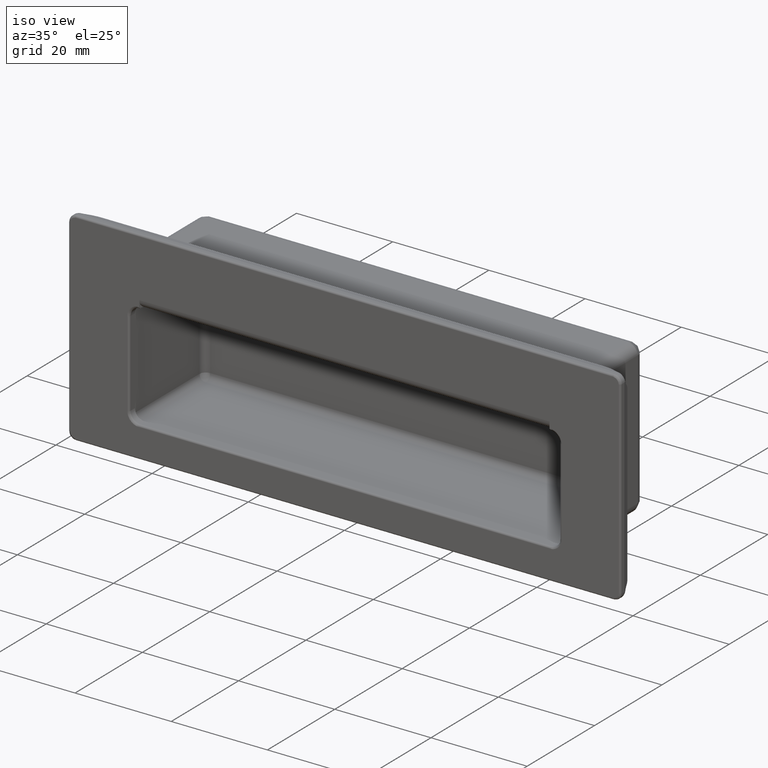
[diagram: clean part render]
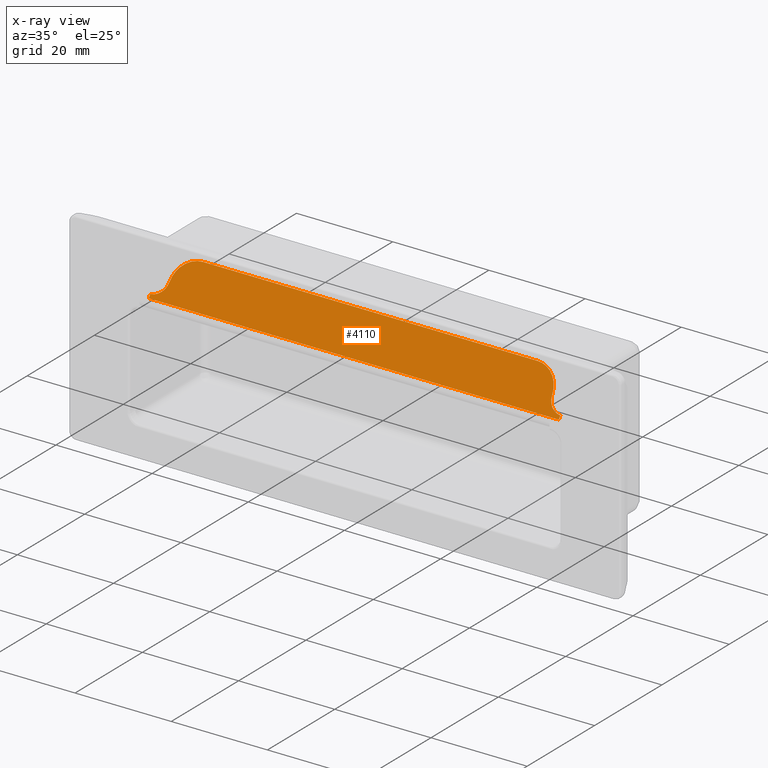
[diagram: x-ray — body ghosted, one internal face saturated and labeled with its STEP entity id]
A machine part, iso view, then the same camera in x-ray: the body is ghosted and one INTERNAL B-rep face — a face not visible from any outside direction — is saturated and labeled: STEP entity #4110.
In plain terms, the highlighted face is a freeform B-spline surface patch.
Its self-contained STEP definition (entity closure, byte-faithful):
#3697=CARTESIAN_POINT('',(39.775182410482898,4.889033783655350,11.181112582391959));
#3698=VERTEX_POINT('',#3697);
#3721=CARTESIAN_POINT('',(34.776537860952303,7.663549479815401,15.199999999978800));
#3722=VERTEX_POINT('',#3721);
#3728=CARTESIAN_POINT('',(39.775182410482898,4.889033783655350,11.181112582391959));
#3729=CARTESIAN_POINT('',(39.768630832592187,5.049259163799806,11.413199128214000));
#3730=CARTESIAN_POINT('',(39.701109429291812,5.403341219309533,11.926087168339871));
#3731=CARTESIAN_POINT('',(39.424063317272569,5.920828853939117,12.675668274142120));
#3732=CARTESIAN_POINT('',(38.991421387648010,6.376299601946769,13.335417887667189));
#3733=CARTESIAN_POINT('',(38.356493124393452,6.837343688033839,14.003240484273739));
#3734=CARTESIAN_POINT('',(37.575330037163809,7.207505413870593,14.539419935156801));
#3735=CARTESIAN_POINT('',(36.580809987253900,7.491223957061687,14.950386391366520));
#3736=CARTESIAN_POINT('',(35.683275754093373,7.633450614080821,15.156401777441779));
#3737=CARTESIAN_POINT('',(35.058629865239347,7.663559524581466,15.200014549831391));
#3738=CARTESIAN_POINT('',(34.776537860952303,7.663549479815401,15.199999999978800));
#3739=B_SPLINE_CURVE_WITH_KNOTS('',3,(#3728,#3729,#3730,#3731,#3732,#3733,#3734,#3735,#3736,#3737,#3738),.UNSPECIFIED.,.F.,.U.,(4,1,1,1,1,1,1,1,4),(0.000000153178559,0.846297590618310,1.873949709255350,2.841154782092601,3.566557639520147,4.956877820079900,5.863652485125332,6.891319940605430,7.737602309952502),.UNSPECIFIED.);
#3740=EDGE_CURVE('',#3698,#3722,#3739,.T.);
#3759=CARTESIAN_POINT('',(42.636537860952302,3.226124157492905,8.772387130761670));
#3760=VERTEX_POINT('',#3759);
#3761=CARTESIAN_POINT('',(39.775182410482898,4.889033783655350,11.181112582391959));
#3762=CARTESIAN_POINT('',(39.780597841686003,4.755775871288670,10.988088427551080));
#3763=CARTESIAN_POINT('',(39.843577245524827,4.503299819681272,10.622376736491130));
#3764=CARTESIAN_POINT('',(40.103525447783497,4.114892918557872,10.059769139759201));
#3765=CARTESIAN_POINT('',(40.497074648751820,3.794883165140539,9.596234846787580));
#3766=CARTESIAN_POINT('',(40.990441310421858,3.545958028758148,9.235666658284591));
#3767=CARTESIAN_POINT('',(41.657920868430622,3.319228911692161,8.907249415225815));
#3768=CARTESIAN_POINT('',(42.238002940286627,3.236280611648847,8.787098759829281));
#3769=CARTESIAN_POINT('',(42.636537860952302,3.226124157492905,8.772387130761670));
#3770=B_SPLINE_CURVE_WITH_KNOTS('',3,(#3761,#3762,#3763,#3764,#3765,#3766,#3767,#3768,#3769),.UNSPECIFIED.,.F.,.U.,(4,1,1,1,1,1,4),(0.000000132698048,0.703852578003654,1.337359520669883,2.182008736138705,2.745068744012519,3.308179520914462,4.504756593339455),.UNSPECIFIED.);
#3771=EDGE_CURVE('',#3698,#3760,#3770,.T.);
#3810=CARTESIAN_POINT('',(-42.636537860952302,3.226124157549750,8.772387130719039));
#3811=VERTEX_POINT('',#3810);
#3812=CARTESIAN_POINT('',(-39.775182410482898,4.889033783712190,11.181112582349320));
#3813=VERTEX_POINT('',#3812);
#3814=CARTESIAN_POINT('',(-42.636537860952302,3.226124157549750,8.772387130719039));
#3815=CARTESIAN_POINT('',(-42.402166963423710,3.232221867323026,8.781219666478769));
#3816=CARTESIAN_POINT('',(-41.959314903988677,3.273720702829079,8.841330751135196));
#3817=CARTESIAN_POINT('',(-41.237983788027833,3.440232218919509,9.082522768131927));
#3818=CARTESIAN_POINT('',(-40.616123598233067,3.712120541299422,9.476353143409916));
#3819=CARTESIAN_POINT('',(-40.168894957951451,4.058412235330835,9.977956840911785));
#3820=CARTESIAN_POINT('',(-39.869544741976640,4.437008803545723,10.526354165333240));
#3821=CARTESIAN_POINT('',(-39.782147458055412,4.715788022490271,10.930166007825379));
#3822=CARTESIAN_POINT('',(-39.775182410482898,4.889033783712190,11.181112582349320));
#3823=B_SPLINE_CURVE_WITH_KNOTS('',3,(#3814,#3815,#3816,#3817,#3818,#3819,#3820,#3821,#3822),.UNSPECIFIED.,.F.,.U.,(4,1,1,1,1,1,4),(0.000000132694862,0.703852578001070,1.337359520667775,2.322747265722947,3.026618578730155,3.589737197123569,4.504756593338534),.UNSPECIFIED.);
#3824=EDGE_CURVE('',#3811,#3813,#3823,.T.);
#3869=CARTESIAN_POINT('',(-34.776537860952303,7.663549479815401,15.199999999978800));
#3870=VERTEX_POINT('',#3869);
#3892=CARTESIAN_POINT('',(-34.776537860952303,7.663549479815401,15.199999999978800));
#3893=CARTESIAN_POINT('',(-35.381108455845322,7.663849351581404,15.200434364399969));
#3894=CARTESIAN_POINT('',(-36.388240086908063,7.558422331588780,15.047723271551741));
#3895=CARTESIAN_POINT('',(-37.520299770831123,7.220544651720190,14.558307277907589));
#3896=CARTESIAN_POINT('',(-38.335525590845478,6.843643916507785,14.012366368451030));
#3897=CARTESIAN_POINT('',(-38.919514144723742,6.445140130357945,13.435133428557091));
#3898=CARTESIAN_POINT('',(-39.375608770157193,5.971699124970767,12.749353887919820));
#3899=CARTESIAN_POINT('',(-39.678604014353411,5.471733238580852,12.025153043457021));
#3900=CARTESIAN_POINT('',(-39.766800349724022,5.095037542363891,11.479509133075229));
#3901=CARTESIAN_POINT('',(-39.775182410482898,4.889033783712190,11.181112582349320));
#3902=B_SPLINE_CURVE_WITH_KNOTS('',3,(#3892,#3893,#3894,#3895,#3896,#3897,#3898,#3899,#3900,#3901),.UNSPECIFIED.,.F.,.U.,(4,1,1,1,1,1,1,4),(0.000000153170599,1.813498842394941,3.022521919073238,3.808398647824229,4.956877820075135,5.742751055967977,6.649525721014829,7.737602309951614),.UNSPECIFIED.);
#3903=EDGE_CURVE('',#3870,#3813,#3902,.T.);
#4015=CARTESIAN_POINT('',(34.776537860952303,7.663549479815401,15.199999999978800));
#4016=CARTESIAN_POINT('',(-34.776537860952303,7.663549479815401,15.199999999978800));
#4017=QUASI_UNIFORM_CURVE('',1,(#4015,#4016),.UNSPECIFIED.,.F.,.U.);
#4018=EDGE_CURVE('',#3722,#3870,#4017,.T.);
#4041=CARTESIAN_POINT('',(42.636537860952302,2.769819534589350,8.111429648976500));
#4042=VERTEX_POINT('',#4041);
#4043=CARTESIAN_POINT('',(-42.636537860952302,2.769819534589335,8.111429648976520));
#4044=VERTEX_POINT('',#4043);
#4045=CARTESIAN_POINT('',(42.636537860952302,2.769819534589350,8.111429648976500));
#4046=CARTESIAN_POINT('',(-42.636537860952302,2.769819534589335,8.111429648976520));
#4047=QUASI_UNIFORM_CURVE('',1,(#4045,#4046),.UNSPECIFIED.,.F.,.U.);
#4048=EDGE_CURVE('',#4042,#4044,#4047,.T.);
#4083=CARTESIAN_POINT('',(42.636537860952302,2.769819534589350,8.111429648976500));
#4084=CARTESIAN_POINT('',(42.636537860952302,3.226124157492905,8.772387130761670));
#4085=QUASI_UNIFORM_CURVE('',1,(#4083,#4084),.UNSPECIFIED.,.F.,.U.);
#4086=EDGE_CURVE('',#4042,#3760,#4085,.T.);
#4091=CARTESIAN_POINT('',(-46.895927827985673,7.907991281085736,15.554074075278351));
#4092=CARTESIAN_POINT('',(-46.895927827985673,2.525377602050625,7.757355383552423));
#4093=CARTESIAN_POINT('',(46.895930115187802,7.907991281085736,15.554074075278351));
#4094=CARTESIAN_POINT('',(46.895930115187802,2.525377602050625,7.757355383552423));
#4095=B_SPLINE_SURFACE_WITH_KNOTS('',1,1,((#4091,#4093),(#4092,#4094)),.UNSPECIFIED.,.F.,.F.,.U.,(2,2),(2,2),(0.0,9.474246797273354),(0.0,93.791857943173454),.UNSPECIFIED.);
#4096=ORIENTED_EDGE('',*,*,#3771,.F.);
#4097=ORIENTED_EDGE('',*,*,#3740,.T.);
#4098=ORIENTED_EDGE('',*,*,#4018,.T.);
#4099=ORIENTED_EDGE('',*,*,#3903,.T.);
#4100=ORIENTED_EDGE('',*,*,#3824,.F.);
#4101=CARTESIAN_POINT('',(-42.636537860952302,2.769819534589335,8.111429648976520));
#4102=CARTESIAN_POINT('',(-42.636537860952302,3.226124157549750,8.772387130719039));
#4103=QUASI_UNIFORM_CURVE('',1,(#4101,#4102),.UNSPECIFIED.,.F.,.U.);
#4104=EDGE_CURVE('',#4044,#3811,#4103,.T.);
#4105=ORIENTED_EDGE('',*,*,#4104,.F.);
#4106=ORIENTED_EDGE('',*,*,#4048,.F.);
#4107=ORIENTED_EDGE('',*,*,#4086,.T.);
#4108=EDGE_LOOP('',(#4096,#4097,#4098,#4099,#4100,#4105,#4106,#4107));
#4109=FACE_OUTER_BOUND('',#4108,.T.);
#4110=ADVANCED_FACE('',(#4109),#4095,.T.);